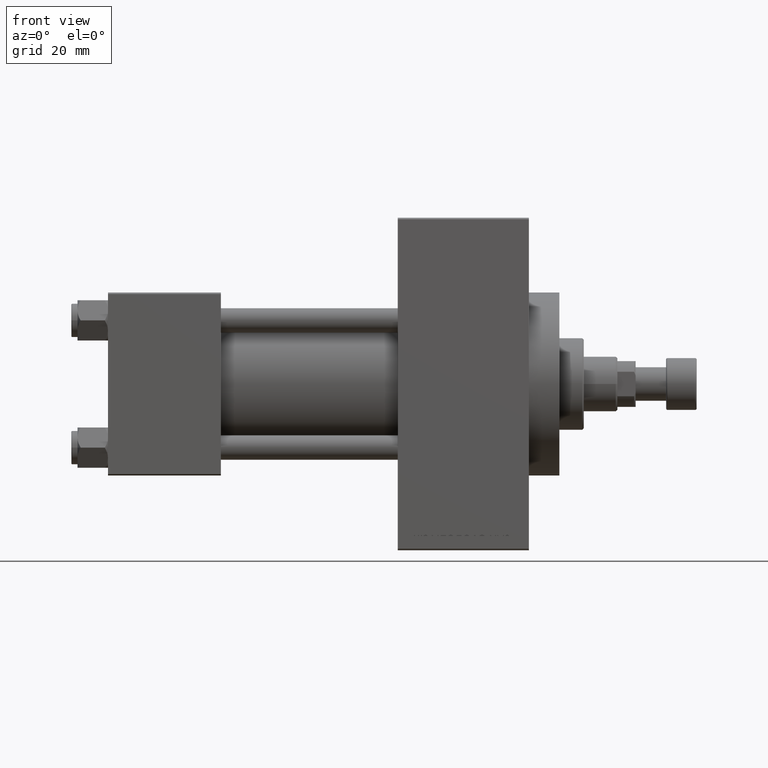
[diagram: clean part render]
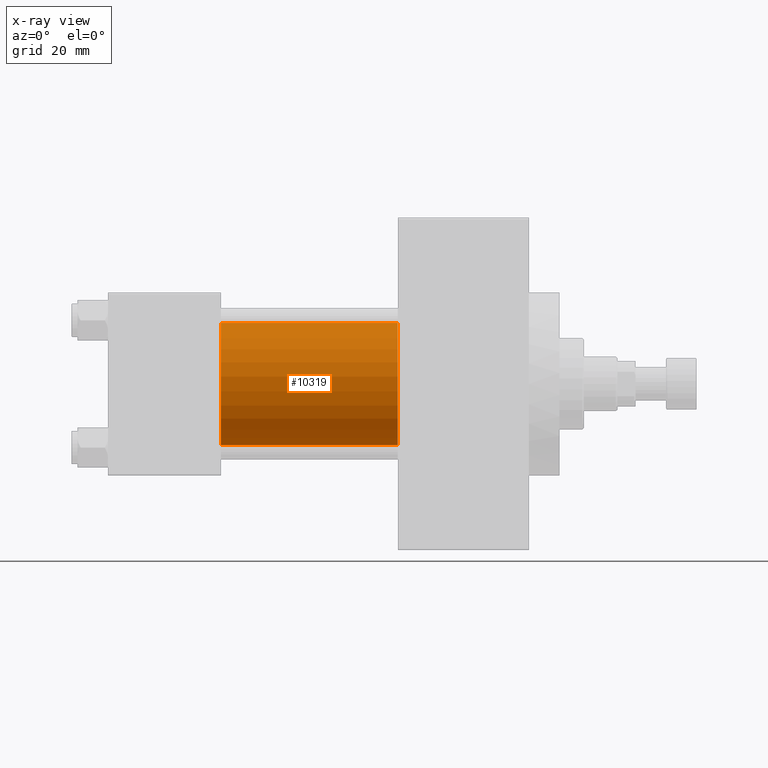
[diagram: x-ray — body ghosted, one internal face saturated and labeled with its STEP entity id]
A machine part, front view, then the same camera in x-ray: the body is ghosted and one INTERNAL B-rep face — a face not visible from any outside direction — is saturated and labeled: STEP entity #10319.
In plain terms, the highlighted cylindrical surface (partial cylindrical patch) has radius 20 mm, axis along (-1, -0, -0).
Its self-contained STEP definition (entity closure, byte-faithful):
#748 = VECTOR ( 'NONE', #42246, 1000.000000000000000 ) ;
#1369 = CARTESIAN_POINT ( 'NONE',  ( 37.00000000000000000, -1.527916156705046464E-16, -20.00000000000000000 ) ) ;
#4921 = CIRCLE ( 'NONE', #45069, 20.00000000000000000 ) ;
#5482 = CARTESIAN_POINT ( 'NONE',  ( 95.00000000000000000, -1.527916156705046464E-16, -20.00000000000000000 ) ) ;
#10319 = ADVANCED_FACE ( 'NONE', ( #18380 ), #32648, .F. ) ;
#10446 = EDGE_CURVE ( 'NONE', #26603, #19547, #4921, .T. ) ;
#10709 = DIRECTION ( 'NONE',  ( 0.000000000000000000, 0.000000000000000000, -1.000000000000000000 ) ) ;
#12112 = ORIENTED_EDGE ( 'NONE', *, *, #46120, .T. ) ;
#12303 = DIRECTION ( 'NONE',  ( 0.000000000000000000, 0.000000000000000000, -1.000000000000000000 ) ) ;
#12678 = ORIENTED_EDGE ( 'NONE', *, *, #10446, .F. ) ;
#14293 = LINE ( 'NONE', #18395, #35083 ) ;
#14855 = CIRCLE ( 'NONE', #25718, 20.00000000000000000 ) ;
#18380 = FACE_OUTER_BOUND ( 'NONE', #33674, .T. ) ;
#18395 = CARTESIAN_POINT ( 'NONE',  ( 95.00000000000000000, -1.527916156705046464E-16, -20.00000000000000000 ) ) ;
#18845 = CARTESIAN_POINT ( 'NONE',  ( 95.00000000000000000, -2.602085213965210642E-15, 0.000000000000000000 ) ) ;
#19547 = VERTEX_POINT ( 'NONE', #1369 ) ;
#23684 = CARTESIAN_POINT ( 'NONE',  ( 37.00000000000000000, -2.602085213965210642E-15, 0.000000000000000000 ) ) ;
#25510 = CARTESIAN_POINT ( 'NONE',  ( 37.00000000000000000, -2.602085213965210642E-15, 20.00000000000000000 ) ) ;
#25718 = AXIS2_PLACEMENT_3D ( 'NONE', #33189, #32472, #10709 ) ;
#26603 = VERTEX_POINT ( 'NONE', #25510 ) ;
#29053 = DIRECTION ( 'NONE',  ( -1.000000000000000000, -0.000000000000000000, -0.000000000000000000 ) ) ;
#29177 = CARTESIAN_POINT ( 'NONE',  ( 95.00000000000000000, -2.602085213965210642E-15, 20.00000000000000000 ) ) ;
#30688 = DIRECTION ( 'NONE',  ( 1.000000000000000000, 0.000000000000000000, 0.000000000000000000 ) ) ;
#32472 = DIRECTION ( 'NONE',  ( 1.000000000000000000, 0.000000000000000000, 0.000000000000000000 ) ) ;
#32622 = EDGE_CURVE ( 'NONE', #39674, #26603, #45400, .T. ) ;
#32648 = CYLINDRICAL_SURFACE ( 'NONE', #43527, 20.00000000000000000 ) ;
#33129 = DIRECTION ( 'NONE',  ( -1.000000000000000000, -0.000000000000000000, -0.000000000000000000 ) ) ;
#33189 = CARTESIAN_POINT ( 'NONE',  ( 95.00000000000000000, -2.602085213965210642E-15, 0.000000000000000000 ) ) ;
#33674 = EDGE_LOOP ( 'NONE', ( #38015, #12112, #12678, #47773 ) ) ;
#35083 = VECTOR ( 'NONE', #29053, 1000.000000000000000 ) ;
#35985 = DIRECTION ( 'NONE',  ( 0.000000000000000000, 0.000000000000000000, 1.000000000000000000 ) ) ;
#38015 = ORIENTED_EDGE ( 'NONE', *, *, #41464, .T. ) ;
#39674 = VERTEX_POINT ( 'NONE', #29177 ) ;
#41464 = EDGE_CURVE ( 'NONE', #39674, #47412, #14855, .T. ) ;
#42246 = DIRECTION ( 'NONE',  ( -1.000000000000000000, -0.000000000000000000, -0.000000000000000000 ) ) ;
#43527 = AXIS2_PLACEMENT_3D ( 'NONE', #18845, #33129, #35985 ) ;
#45069 = AXIS2_PLACEMENT_3D ( 'NONE', #23684, #30688, #12303 ) ;
#45400 = LINE ( 'NONE', #45636, #748 ) ;
#45636 = CARTESIAN_POINT ( 'NONE',  ( 95.00000000000000000, -2.602085213965210642E-15, 20.00000000000000000 ) ) ;
#46120 = EDGE_CURVE ( 'NONE', #47412, #19547, #14293, .T. ) ;
#47412 = VERTEX_POINT ( 'NONE', #5482 ) ;
#47773 = ORIENTED_EDGE ( 'NONE', *, *, #32622, .F. ) ;